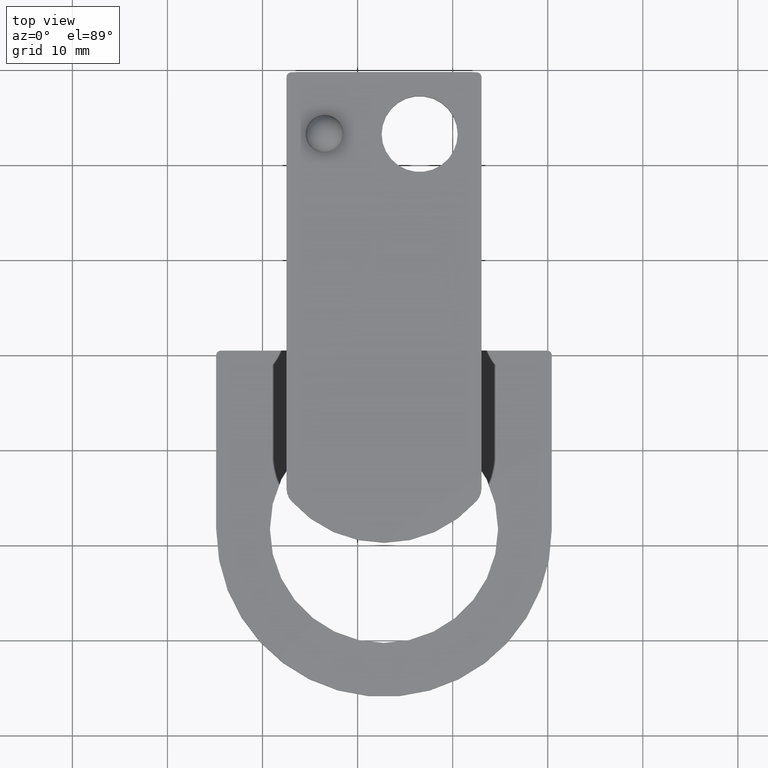
[diagram: clean part render]
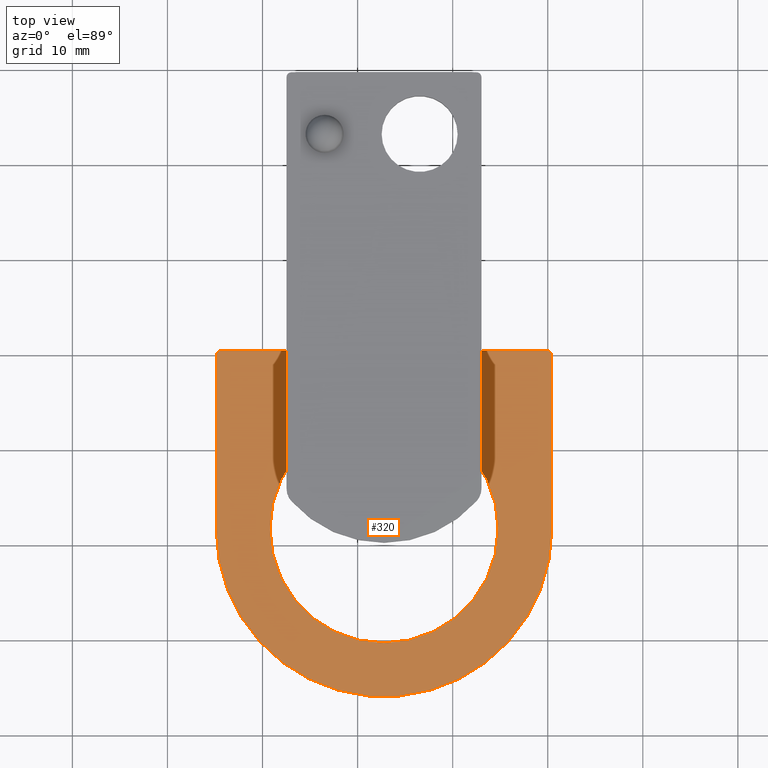
[diagram: same view with one face highlighted and labeled with its STEP entity id]
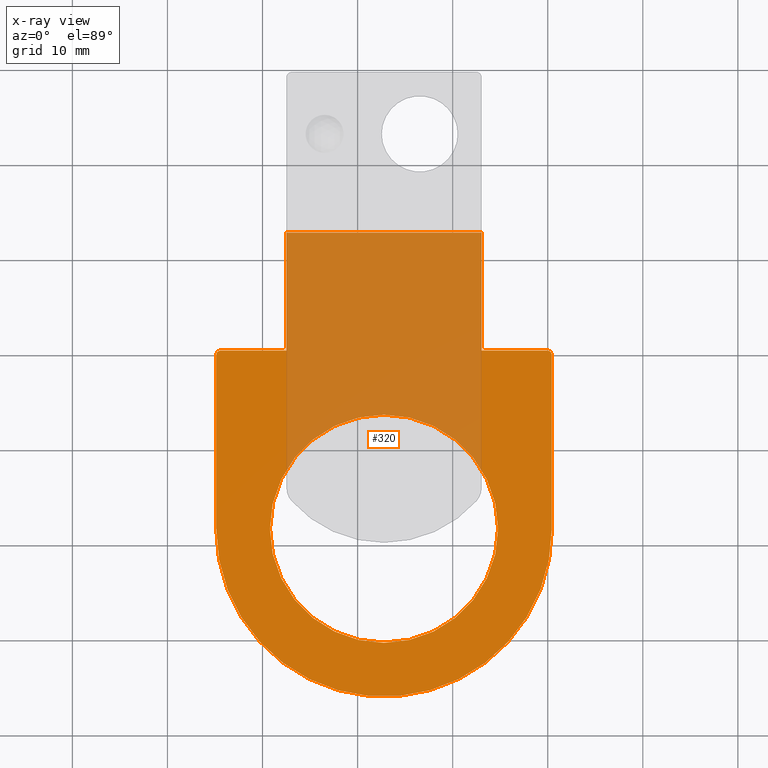
[diagram: x-ray of the same camera — body ghosted, the highlighted face saturated]
A machine part, top view. The second image highlights one B-rep face of the part: STEP entity #320.
The next image is the same camera in x-ray: the body ghosted, the highlighted face saturated — about 45% of this face is hidden behind the body in this view.
In plain terms, the highlighted planar face has unit normal (0, 0, 1).
Its self-contained STEP definition (entity closure, byte-faithful):
#168=CARTESIAN_POINT('',(19.926965155120048,0.491234150720001,1.600000000000000));
#169=VERTEX_POINT('',#168);
#170=CARTESIAN_POINT('',(20.426965155120051,-0.008765849279999,1.600000000000000));
#171=VERTEX_POINT('',#170);
#172=CARTESIAN_POINT('',(19.926965155120048,-0.008765849279999,1.600000000000000));
#173=DIRECTION('',(0.0,0.0,-1.000000000000000));
#174=DIRECTION('',(0.707106781186549,0.707106781186546,0.0));
#175=AXIS2_PLACEMENT_3D('',#172,#173,#174);
#176=CIRCLE('',#175,0.500000000000000);
#177=EDGE_CURVE('',#169,#171,#176,.T.);
#211=CARTESIAN_POINT('',(20.426965155120044,-18.258765849280003,1.600000000000000));
#212=VERTEX_POINT('',#211);
#213=CARTESIAN_POINT('',(20.426965155120051,-0.008765849279999,1.600000000000000));
#214=DIRECTION('',(0.0,-1.0,0.0));
#215=VECTOR('',#214,18.250000000000004);
#216=LINE('',#213,#215);
#217=EDGE_CURVE('',#171,#212,#216,.T.);
#236=CARTESIAN_POINT('',(2.776965155120047,-8.225099792446088,1.600000000000000));
#237=DIRECTION('',(0.0,0.0,1.0));
#238=DIRECTION('',(1.0,0.0,0.0));
#239=AXIS2_PLACEMENT_3D('',#236,#237,#238);
#240=PLANE('',#239);
#241=ORIENTED_EDGE('',*,*,#177,.F.);
#242=CARTESIAN_POINT('',(13.026965155120049,0.491234150719997,1.600000000000000));
#243=VERTEX_POINT('',#242);
#244=CARTESIAN_POINT('',(13.026965155120049,0.491234150719997,1.600000000000000));
#245=DIRECTION('',(1.0,0.0,0.0));
#246=VECTOR('',#245,6.899999999999999);
#247=LINE('',#244,#246);
#248=EDGE_CURVE('',#243,#169,#247,.T.);
#249=ORIENTED_EDGE('',*,*,#248,.F.);
#250=CARTESIAN_POINT('',(13.026965155120047,12.891234150719995,1.600000000000000));
#251=VERTEX_POINT('',#250);
#252=CARTESIAN_POINT('',(13.026965155120047,12.891234150719995,1.600000000000000));
#253=DIRECTION('',(0.0,-1.0,0.0));
#254=VECTOR('',#253,12.399999999999999);
#255=LINE('',#252,#254);
#256=EDGE_CURVE('',#251,#243,#255,.T.);
#257=ORIENTED_EDGE('',*,*,#256,.F.);
#258=CARTESIAN_POINT('',(-7.473034844879956,12.891234150719995,1.600000000000000));
#259=VERTEX_POINT('',#258);
#260=CARTESIAN_POINT('',(13.026965155120047,12.891234150719995,1.600000000000000));
#261=DIRECTION('',(-1.0,0.0,0.0));
#262=VECTOR('',#261,20.500000000000004);
#263=LINE('',#260,#262);
#264=EDGE_CURVE('',#251,#259,#263,.T.);
#265=ORIENTED_EDGE('',*,*,#264,.T.);
#266=CARTESIAN_POINT('',(-7.473034844879951,0.491234150719997,1.600000000000000));
#267=VERTEX_POINT('',#266);
#268=CARTESIAN_POINT('',(-7.473034844879951,0.491234150719997,1.600000000000000));
#269=DIRECTION('',(0.0,1.0,0.0));
#270=VECTOR('',#269,12.399999999999999);
#271=LINE('',#268,#270);
#272=EDGE_CURVE('',#267,#259,#271,.T.);
#273=ORIENTED_EDGE('',*,*,#272,.F.);
#274=CARTESIAN_POINT('',(-14.373034844879953,0.491234150719993,1.600000000000000));
#275=VERTEX_POINT('',#274);
#276=CARTESIAN_POINT('',(-14.373034844879953,0.491234150719993,1.600000000000000));
#277=DIRECTION('',(1.0,0.0,0.0));
#278=VECTOR('',#277,6.900000000000002);
#279=LINE('',#276,#278);
#280=EDGE_CURVE('',#275,#267,#279,.T.);
#281=ORIENTED_EDGE('',*,*,#280,.F.);
#282=CARTESIAN_POINT('',(-14.873034844879953,-0.008765849280008,1.600000000000000));
#283=VERTEX_POINT('',#282);
#284=CARTESIAN_POINT('',(-14.373034844879953,-0.008765849280008,1.600000000000000));
#285=DIRECTION('',(0.0,0.0,-1.0));
#286=DIRECTION('',(-0.707106781186549,0.707106781186546,0.0));
#287=AXIS2_PLACEMENT_3D('',#284,#285,#286);
#288=CIRCLE('',#287,0.500000000000000);
#289=EDGE_CURVE('',#283,#275,#288,.T.);
#290=ORIENTED_EDGE('',*,*,#289,.F.);
#291=CARTESIAN_POINT('',(-14.873034844879951,-18.258765849280007,1.600000000000000));
#292=VERTEX_POINT('',#291);
#293=CARTESIAN_POINT('',(-14.873034844879951,-18.258765849280007,1.600000000000000));
#294=DIRECTION('',(0.0,1.0,0.0));
#295=VECTOR('',#294,18.250000000000000);
#296=LINE('',#293,#295);
#297=EDGE_CURVE('',#292,#283,#296,.T.);
#298=ORIENTED_EDGE('',*,*,#297,.F.);
#299=CARTESIAN_POINT('',(2.776965155120046,-18.258765849280007,1.600000000000000));
#300=DIRECTION('',(0.0,0.0,-1.0));
#301=DIRECTION('',(-1.0,0.0,0.0));
#302=AXIS2_PLACEMENT_3D('',#299,#300,#301);
#303=CIRCLE('',#302,17.649999999999999);
#304=EDGE_CURVE('',#212,#292,#303,.T.);
#305=ORIENTED_EDGE('',*,*,#304,.F.);
#306=ORIENTED_EDGE('',*,*,#217,.F.);
#307=EDGE_LOOP('',(#241,#249,#257,#265,#273,#281,#290,#298,#305,#306));
#308=FACE_OUTER_BOUND('',#307,.T.);
#309=CARTESIAN_POINT('',(14.776965155120047,-18.258765849280007,1.600000000000000));
#310=VERTEX_POINT('',#309);
#311=CARTESIAN_POINT('',(2.776965155120046,-18.258765849280007,1.600000000000000));
#312=DIRECTION('',(0.0,0.0,-1.0));
#313=DIRECTION('',(-1.0,0.0,0.0));
#314=AXIS2_PLACEMENT_3D('',#311,#312,#313);
#315=CIRCLE('',#314,12.000000000000002);
#316=EDGE_CURVE('',#310,#310,#315,.T.);
#317=ORIENTED_EDGE('',*,*,#316,.T.);
#318=EDGE_LOOP('',(#317));
#319=FACE_BOUND('',#318,.T.);
#320=ADVANCED_FACE('',(#308,#319),#240,.T.);